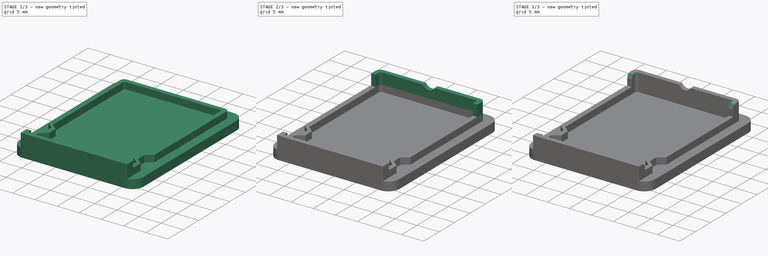
[diagram: build sequence overview — one tinted view per stage of 3, left to right]
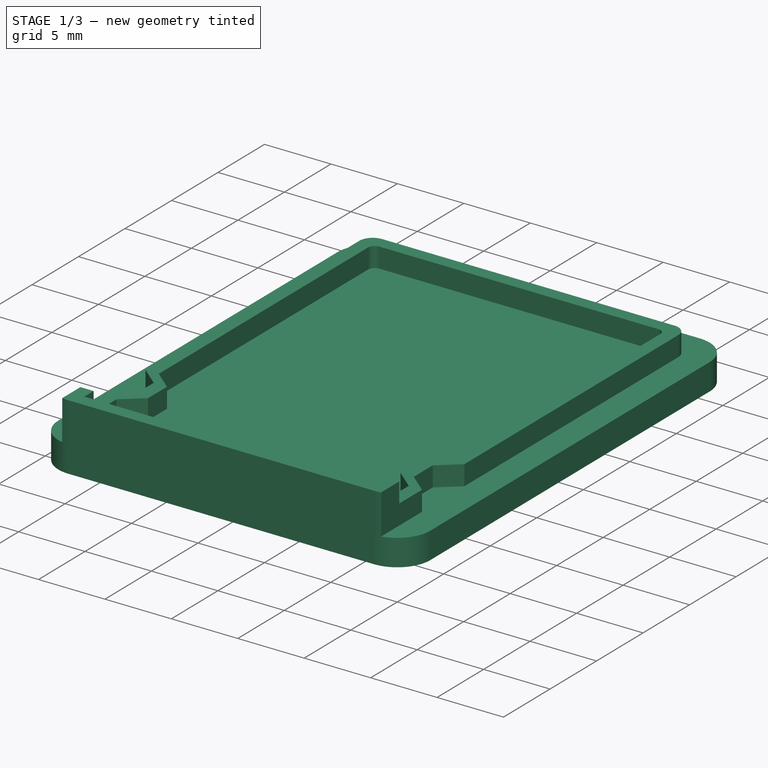
[diagram: stage 1 of 3 — iso view after this stage's code; geometry added in this stage tinted green]
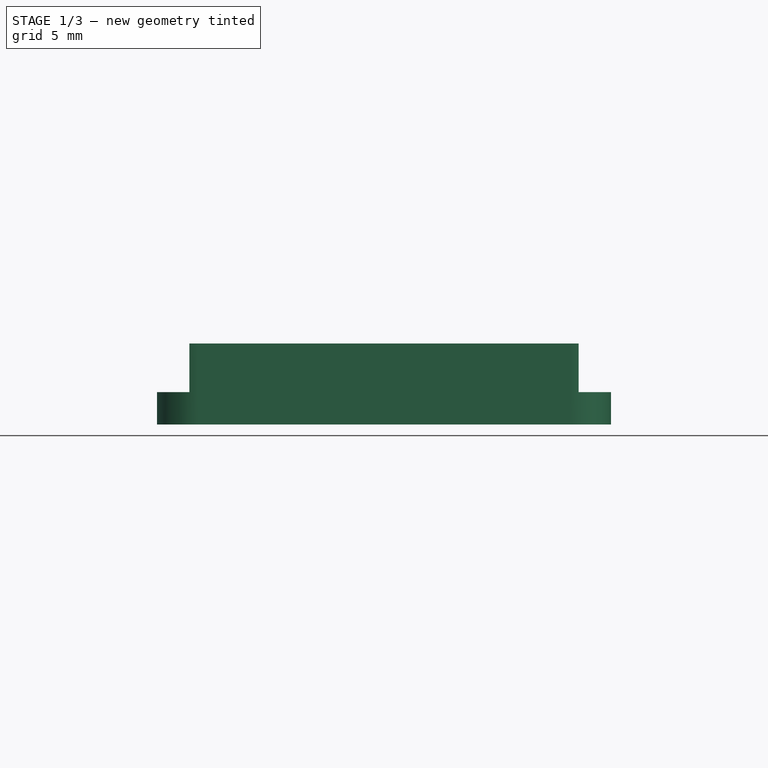
[diagram: stage 1 of 3 — front view after this stage's code; geometry added in this stage tinted green]
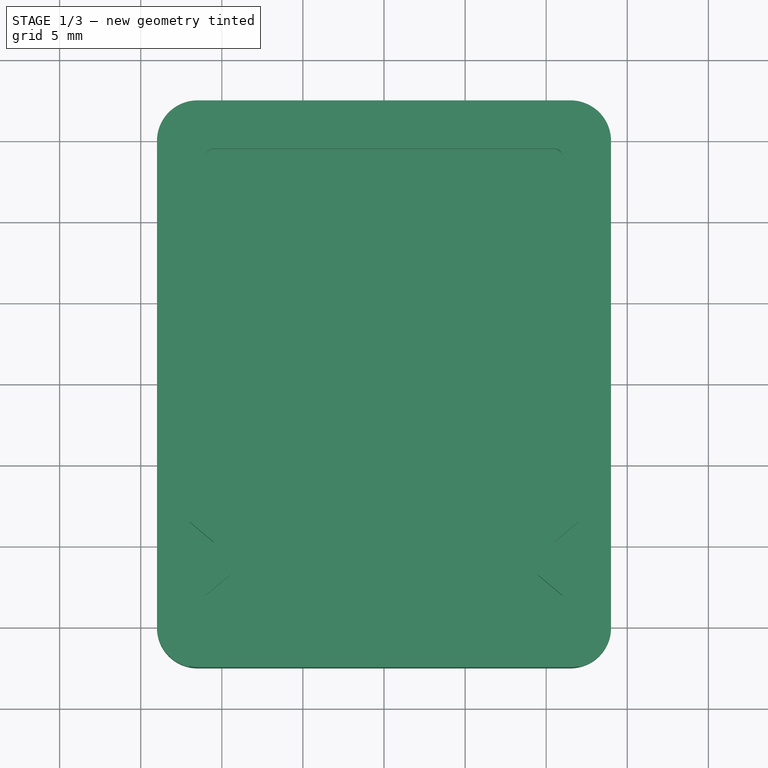
[diagram: stage 1 of 3 — top view after this stage's code; geometry added in this stage tinted green]
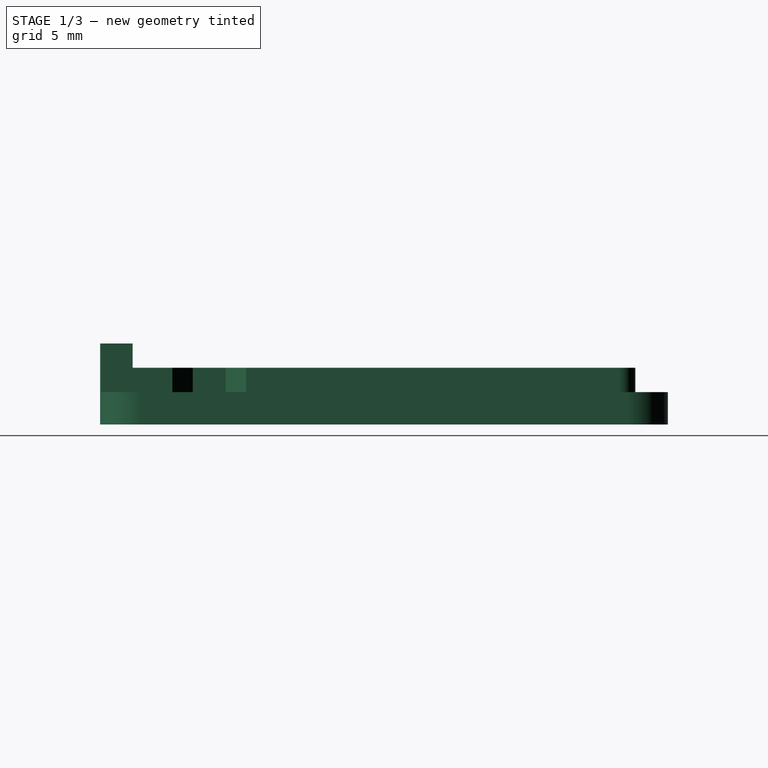
[diagram: stage 1 of 3 — right view after this stage's code; geometry added in this stage tinted green]
FCSTD DOCUMENT  (FreeCAD 0.18.4R)
Label: soil-lid
License: All rights reserved
LicenseURL: http://en.wikipedia.org/wiki/All_rights_reserved
objects: Sketcher::SketchObject×5, PartDesign::Pad×4, PartDesign::Fillet×3, PartDesign::Pocket×1, PartDesign::Body×1
note: 19 computed .brp shape members not serialized (recipe doc carries the construction recipe); baked Part::Feature solids carry a one-line shape summary decoded from their .brp

FEATURE [Sketcher::SketchObject] Sketch
  MapMode = 5
  Support = -> [XY_Plane]
  sketch-geometry (8):
    g0: LineSegment StartX=-11.5 StartY=17.5 StartZ=0 EndX=11.5 EndY=17.5 EndZ=0
    g1: LineSegment StartX=14 StartY=15 StartZ=0 EndX=14 EndY=-15 EndZ=0
    g2: LineSegment StartX=11.5 StartY=-17.5 StartZ=0 EndX=-11.5 EndY=-17.5 EndZ=0
    g3: LineSegment StartX=-14 StartY=-15 StartZ=0 EndX=-14 EndY=15 EndZ=0
    g4: ArcOfCircle CenterX=-11.5 CenterY=15 CenterZ=0 NormalX=0 NormalY=0 NormalZ=1 AngleXU=0 Radius=2.5 StartAngle=1.5708 EndAngle=3.14159
    g5: ArcOfCircle CenterX=11.5 CenterY=15 CenterZ=0 NormalX=0 NormalY=0 NormalZ=1 AngleXU=0 Radius=2.5 StartAngle=-1.519e-13 EndAngle=1.5708
    g6: ArcOfCircle CenterX=-11.5 CenterY=-15 CenterZ=0 NormalX=0 NormalY=0 NormalZ=1 AngleXU=0 Radius=2.5 StartAngle=3.14159 EndAngle=4.71239
    g7: ArcOfCircle CenterX=11.5 CenterY=-15 CenterZ=0 NormalX=0 NormalY=0 NormalZ=1 AngleXU=0 Radius=2.5 StartAngle=4.71239 EndAngle=6.28319
  constraints (19):
    c: Horizontal(g0)
    c: Horizontal(g2)
    c: Vertical(g1)
    c: Vertical(g3)
    c: Tangent(g3,g4) = 1.5708
    c: Tangent(g0,g4) = 1.5708
    c: Tangent(g0,g5) = 1.5708
    c: Tangent(g1,g5) = 1.5708
    c: Tangent(g3,g6) = 1.5708
    c: Tangent(g2,g6) = 1.5708
    c: Tangent(g2,g7) = 1.5708
    c: Tangent(g1,g7) = 1.5708
    c: Equal(g5,g7)
    c: Equal(g7,g6)
    c: Equal(g6,g4)
    c: Symmetric(g5,g6,g-1)
    c: DistanceY(g2,g0) = 35
    c: Radius(g5) = 2.5
    c: DistanceX(g3,g1) = 28
FEATURE [PartDesign::Pad] Pad
  Length = 2
  Length2 = 100
  Profile = -> Sketch
  Type = 0
FEATURE [Sketcher::SketchObject] Sketch001
  ExternalGeometry = -> [Pad]
  MapMode = 5
  Placement = pos=(0,0,2) rot=(0,0,1;0rad)
  Support = -> [Pad]
  sketch-geometry (30):
    g0: LineSegment StartX=-11 StartY=15.5 StartZ=0 EndX=11 EndY=15.5 EndZ=0
    g1: ArcOfCircle CenterX=11 CenterY=14.5 CenterZ=0 NormalX=0 NormalY=0 NormalZ=1 AngleXU=0 Radius=1 StartAngle=0 EndAngle=1.5708
    g2: ArcOfCircle CenterX=-11 CenterY=14.5 CenterZ=0 NormalX=0 NormalY=0 NormalZ=1 AngleXU=0 Radius=1 StartAngle=1.5708 EndAngle=3.14159
    g3: LineSegment StartX=-12 StartY=14.5 StartZ=0 EndX=-12 EndY=-8.5 EndZ=0
    g4: LineSegment StartX=-12 StartY=-8.5 StartZ=0 EndX=-10.5 EndY=-9.76 EndZ=0
    g5: LineSegment StartX=-10.5 StartY=-9.76 StartZ=0 EndX=-10.5 EndY=-11.79 EndZ=0
    g6: LineSegment StartX=-10.5 StartY=-11.79 StartZ=0 EndX=-12 EndY=-13.05 EndZ=0
    g7: LineSegment StartX=-12 StartY=-13.05 StartZ=0 EndX=-12 EndY=-17.4495 EndZ=0
    g8: LineSegment StartX=12 StartY=14.5 StartZ=0 EndX=12 EndY=-8.5 EndZ=0
    g9: LineSegment StartX=12 StartY=-8.5 StartZ=0 EndX=10.5 EndY=-9.76 EndZ=0
    g10: LineSegment StartX=10.5 StartY=-9.76 StartZ=0 EndX=10.5 EndY=-11.79 EndZ=0
    g11: LineSegment StartX=10.5 StartY=-11.79 StartZ=0 EndX=12 EndY=-13.05 EndZ=0
    g12: LineSegment StartX=12 StartY=-13.05 StartZ=0 EndX=12 EndY=-17.4495 EndZ=0
    g13: ArcOfCircle CenterX=-11.5 CenterY=-15 CenterZ=0 NormalX=0 NormalY=0 NormalZ=1 AngleXU=0 Radius=2.5 StartAngle=4.51103 EndAngle=4.71239
    g14: ArcOfCircle CenterX=11.5 CenterY=-15 CenterZ=0 NormalX=0 NormalY=0 NormalZ=1 AngleXU=0 Radius=2.5 StartAngle=4.71239 EndAngle=4.91375
    g15: LineSegment StartX=-11.5 StartY=-17.5 StartZ=0 EndX=11.5 EndY=-17.5 EndZ=0
    g16: LineSegment StartX=-11 StartY=-16.5 StartZ=0 EndX=-11 EndY=-13.05 EndZ=0
    g17: LineSegment StartX=-11 StartY=-13.05 StartZ=0 EndX=-9.5 EndY=-11.79 EndZ=0
    g18: LineSegment StartX=-9.5 StartY=-11.79 StartZ=0 EndX=-9.5 EndY=-9.76 EndZ=0
    g19: LineSegment StartX=-9.5 StartY=-9.76 StartZ=0 EndX=-11 EndY=-8.5 EndZ=0
    g20: LineSegment StartX=-11 StartY=-8.5 StartZ=0 EndX=-11 EndY=14 EndZ=0
    g21: LineSegment StartX=-10.5 StartY=14.5 StartZ=0 EndX=10.5 EndY=14.5 EndZ=0
    g22: LineSegment StartX=11 StartY=14 StartZ=0 EndX=11 EndY=-8.5 EndZ=0
    g23: LineSegment StartX=11 StartY=-8.5 StartZ=0 EndX=9.5 EndY=-9.76 EndZ=0
    g24: LineSegment StartX=9.5 StartY=-9.76 StartZ=0 EndX=9.5 EndY=-11.79 EndZ=0
    g25: LineSegment StartX=9.5 StartY=-11.79 StartZ=0 EndX=11 EndY=-13.05 EndZ=0
    g26: LineSegment StartX=11 StartY=-13.05 StartZ=0 EndX=11 EndY=-16.5 EndZ=0
    g27: LineSegment StartX=11 StartY=-16.5 StartZ=0 EndX=-11 EndY=-16.5 EndZ=0
    g28: ArcOfCircle CenterX=-10.5 CenterY=14 CenterZ=0 NormalX=0 NormalY=0 NormalZ=1 AngleXU=0 Radius=0.5 StartAngle=1.5708 EndAngle=3.14159
    g29: ArcOfCircle CenterX=10.5 CenterY=14 CenterZ=0 NormalX=0 NormalY=0 NormalZ=1 AngleXU=0 Radius=0.5 StartAngle=-4.4e-15 EndAngle=1.5708
  constraints (88):
    c: Horizontal(g0)
    c: Equal(g2,g1)
    c: Coincident(g3,g4)
    c: Coincident(g4,g5)
    c: Coincident(g5,g6)
    c: Coincident(g6,g7)
    c: Vertical(g8)
    c: Coincident(g8,g9)
    c: Coincident(g9,g10)
    c: Vertical(g10)
    c: Coincident(g10,g11)
    c: Coincident(g11,g12)
    c: Vertical(g12)
    c: Vertical(g7)
    c: Vertical(g3)
    c: Vertical(g5)
    c: Equal(g5,g10)
    c: Coincident(g1,g8)
    c: Coincident(g1,g0)
    c: Coincident(g0,g2)
    c: Coincident(g2,g3)
    c: DistanceY(g0,g-3) = 2
    c: DistanceX(g1,g-5) = 2
    c: DistanceX(g-4,g2) = 2
    c: Radius(g2) = 1
    c: Horizontal(g2,g2)
    c: Vertical(g0,g2)
    c: Vertical(g1,g0)
    c: Horizontal(g1,g1)
    c: DistanceY(g6,g3) = 4.55
    c: DistanceY(g5,g5) = 2.03
    c: Horizontal(g10,g5)
    c: DistanceY(g11,g8) = 4.55
    c: DistanceX(g3,g4) = 1.5
    c: DistanceY(g4,g3) = 1.26
    c: Equal(g4,g9)
    c: DistanceX(g-4,g6) = 2
    c: DistanceX(g11,g-5) = 2
    c: Equal(g11,g6)
    c: DistanceY(g8,g8) = 23
    c: Coincident(g13,g-7)
    c: Coincident(g13,g-7)
    c: Coincident(g13,g7)
    c: Coincident(g14,g-8)
    c: Coincident(g14,g-8)
    c: Coincident(g14,g12)
    c: Coincident(g15,g13)
    c: Coincident(g15,g14)
    c: Vertical(g16)
    c: Coincident(g16,g17)
    c: Coincident(g17,g18)
    c: Coincident(g18,g19)
    c: Coincident(g19,g20)
    c: Horizontal(g21)
    c: Vertical(g22)
    c: Coincident(g22,g23)
    c: Coincident(g23,g24)
    c: Vertical(g24)
    c: Coincident(g24,g25)
    c: Coincident(g25,g26)
    c: Vertical(g26)
    c: Coincident(g26,g27)
    c: Coincident(g27,g16)
    c: Horizontal(g27)
    c: Vertical(g18)
    c: Vertical(g20)
    c: Tangent(g20,g28) = 1.5708
    c: Tangent(g21,g28) = 1.5708
    c: Tangent(g21,g29) = 1.5708
    c: Tangent(g22,g29) = 1.5708
    c: Equal(g18,g24)
    c: Horizontal(g24,g17)
    c: Equal(g19,g23)
    c: Equal(g25,g17)
    c: Equal(g20,g22)
    c: Equal(g28,g29)
    c: DistanceY(g21,g0) = 1
    c: DistanceX(g2,g20) = 1
    c: DistanceX(g22,g1) = 1
    c: DistanceX(g19,g16) = 0
    c: DistanceY(g14,g26) = 1
    c: DistanceX(g25,g11) = 1
    c: Horizontal(g23,g9)
    c: Horizontal(g22,g8)
    c: Horizontal(g24,g10)
    c: Horizontal(g25,g11)
    c: DistanceX(g23,g9) = 1
    c: Radius(g28) = 0.5
FEATURE [PartDesign::Pad] Pad001
  BaseFeature = -> Pad
  Length = 1.5
  Length2 = 100
  Profile = -> Sketch001
  Type = 0
FEATURE [Sketcher::SketchObject] Sketch002
  ExternalGeometry = -> [Pad001]
  MapMode = 5
  Placement = pos=(0,0,3.5) rot=(0,0,1;0rad)
  Support = -> [Pad001]
  sketch-geometry (12):
    g0: ArcOfCircle CenterX=11.5 CenterY=-15 CenterZ=0 NormalX=0 NormalY=0 NormalZ=1 AngleXU=0 Radius=2.5 StartAngle=4.71239 EndAngle=4.91375
    g1: ArcOfCircle CenterX=-11.5 CenterY=-15 CenterZ=0 NormalX=0 NormalY=0 NormalZ=1 AngleXU=0 Radius=2.5 StartAngle=4.51103 EndAngle=4.71239
    g2: LineSegment StartX=-12 StartY=-16.5 StartZ=0 EndX=-12 EndY=-17.4495 EndZ=0
    g3: LineSegment StartX=-11.5 StartY=-17.5 StartZ=0 EndX=11.5 EndY=-17.5 EndZ=0
    g4: LineSegment StartX=12 StartY=-16.5 StartZ=0 EndX=12 EndY=-17.4495 EndZ=0
    g5: LineSegment StartX=11 StartY=-16.5 StartZ=0 EndX=-11 EndY=-16.5 EndZ=0
    g6: LineSegment StartX=-12 StartY=-16.5 StartZ=0 EndX=-12 EndY=-15.5 EndZ=0
    g7: LineSegment StartX=-12 StartY=-15.5 StartZ=0 EndX=-11 EndY=-15.5 EndZ=0
    g8: LineSegment StartX=-11 StartY=-15.5 StartZ=0 EndX=-11 EndY=-16.5 EndZ=0
    g9: LineSegment StartX=11 StartY=-16.5 StartZ=0 EndX=11 EndY=-15.5 EndZ=0
    g10: LineSegment StartX=11 StartY=-15.5 StartZ=0 EndX=12 EndY=-15.5 EndZ=0
    g11: LineSegment StartX=12 StartY=-15.5 StartZ=0 EndX=12 EndY=-16.5 EndZ=0
  constraints (32):
    c: Coincident(g0,g-4)
    c: Coincident(g0,g-3)
    c: Coincident(g1,g-5)
    c: Coincident(g1,g-3)
    c: Horizontal(g2,g-6)
    c: Vertical(g2,g-5)
    c: Vertical(g4,g-4)
    c: Coincident(g2,g-5)
    c: PointOnObject(g1,g2)
    c: Coincident(g3,g1)
    c: Coincident(g3,g0)
    c: Coincident(g4,g-4)
    c: PointOnObject(g0,g4)
    c: Coincident(g5,g-6)
    c: Coincident(g5,g-6)
    c: Coincident(g2,g6)
    c: Coincident(g6,g7)
    c: Coincident(g7,g8)
    c: Coincident(g8,g5)
    c: Vertical(g8)
    c: Coincident(g5,g9)
    c: Vertical(g9)
    c: Coincident(g9,g10)
    c: Horizontal(g10)
    c: Coincident(g10,g11)
    c: Coincident(g11,g4)
    c: Vertical(g11)
    c: Horizontal(g7)
    c: Vertical(g6)
    c: Equal(g8,g9)
    c: DistanceY(g9,g9) = 1
    c: Horizontal(g4,g5)
FEATURE [PartDesign::Pad] Pad002
  BaseFeature = -> Pad001
  Length = 1.5
  Length2 = 100
  Profile = -> Sketch002
  Type = 0
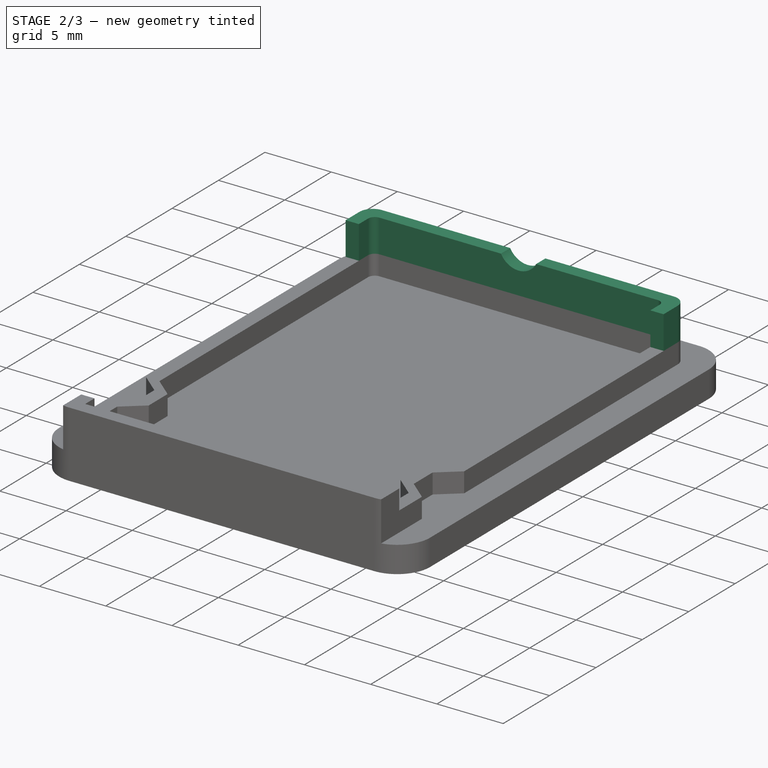
[diagram: stage 2 of 3 — iso view after this stage's code; geometry added in this stage tinted green]
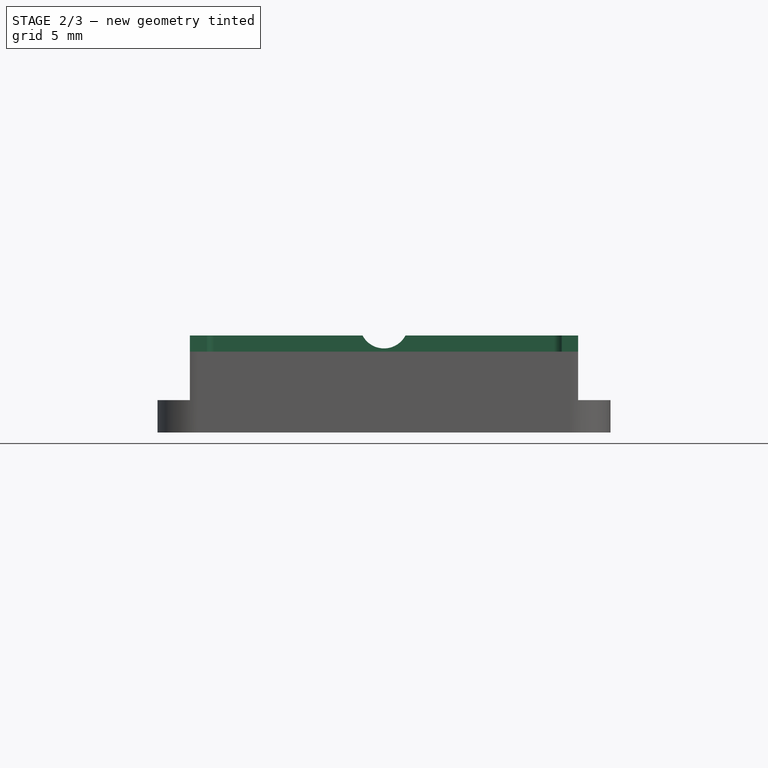
[diagram: stage 2 of 3 — front view after this stage's code; geometry added in this stage tinted green]
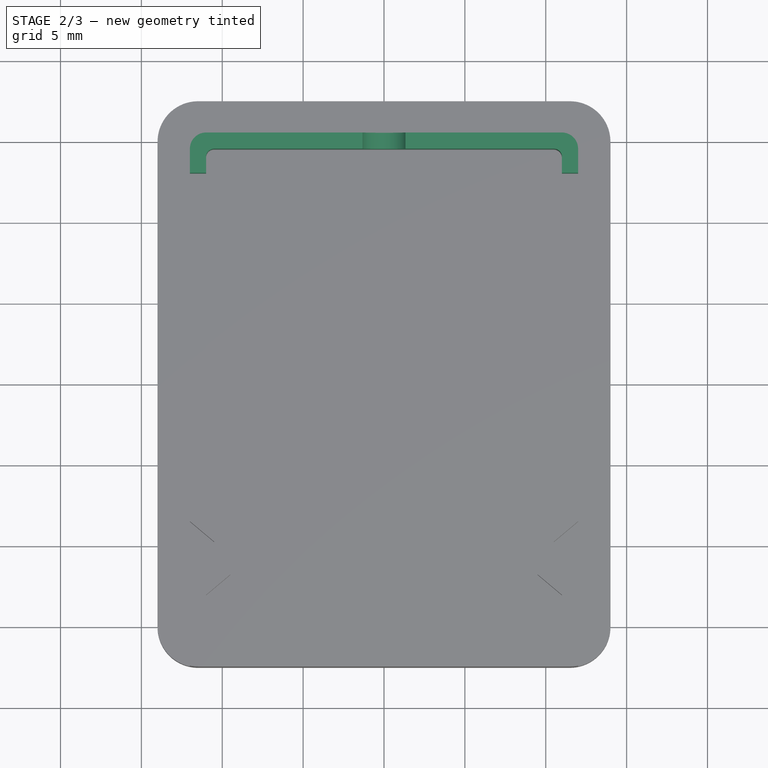
[diagram: stage 2 of 3 — top view after this stage's code; geometry added in this stage tinted green]
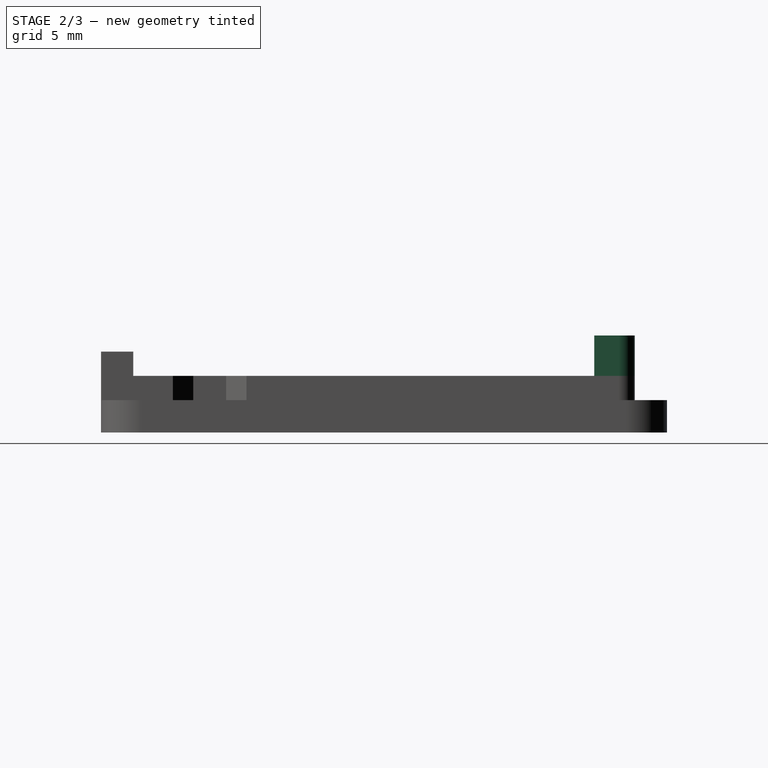
[diagram: stage 2 of 3 — right view after this stage's code; geometry added in this stage tinted green]
FEATURE [Sketcher::SketchObject] Sketch003
  ExternalGeometry = -> [Pad002]
  MapMode = 5
  Placement = pos=(0,0,3.5) rot=(0,0,1;0rad)
  Support = -> [Pad002]
  sketch-geometry (12):
    g0: LineSegment StartX=-11 StartY=15.5 StartZ=0 EndX=11 EndY=15.5 EndZ=0
    g1: LineSegment StartX=-11 StartY=14 StartZ=0 EndX=-11 EndY=13 EndZ=0
    g2: LineSegment StartX=-12 StartY=14.5 StartZ=0 EndX=-12 EndY=13 EndZ=0
    g3: LineSegment StartX=11 StartY=14 StartZ=0 EndX=11 EndY=13 EndZ=0
    g4: LineSegment StartX=12 StartY=14.5 StartZ=0 EndX=12 EndY=13 EndZ=0
    g5: LineSegment StartX=11 StartY=13 StartZ=0 EndX=12 EndY=13 EndZ=0
    g6: LineSegment StartX=-12 StartY=13 StartZ=0 EndX=-11 EndY=13 EndZ=0
    g7: ArcOfCircle CenterX=-11 CenterY=14.5 CenterZ=0 NormalX=0 NormalY=0 NormalZ=1 AngleXU=0 Radius=1 StartAngle=1.57078 EndAngle=3.14159
    g8: ArcOfCircle CenterX=11 CenterY=14.5 CenterZ=0 NormalX=0 NormalY=0 NormalZ=1 AngleXU=0 Radius=1 StartAngle=0 EndAngle=1.57079
    g9: ArcOfCircle CenterX=10.5 CenterY=14 CenterZ=0 NormalX=0 NormalY=0 NormalZ=1 AngleXU=0 Radius=0.5 StartAngle=-2.7e-15 EndAngle=1.5708
    g10: ArcOfCircle CenterX=-10.5 CenterY=14 CenterZ=0 NormalX=0 NormalY=0 NormalZ=1 AngleXU=0 Radius=0.5 StartAngle=1.5708 EndAngle=3.14159
    g11: LineSegment StartX=-10.5 StartY=14.5 StartZ=0 EndX=10.5 EndY=14.5 EndZ=0
  constraints (32):
    c: Coincident(g1,g-6)
    c: Coincident(g2,g-5)
    c: Vertical(g2)
    c: Coincident(g3,g-7)
    c: Vertical(g3)
    c: Coincident(g4,g-8)
    c: Vertical(g4)
    c: Coincident(g5,g3)
    c: Coincident(g5,g4)
    c: Coincident(g6,g2)
    c: Coincident(g6,g1)
    c: Horizontal(g6)
    c: Vertical(g1)
    c: Horizontal(g5)
    c: Horizontal(g3,g1)
    c: Coincident(g7,g-5)
    c: Coincident(g7,g2)
    c: Coincident(g7,g0)
    c: Coincident(g8,g-8)
    c: Coincident(g8,g0)
    c: Coincident(g8,g4)
    c: Coincident(g9,g-7)
    c: Coincident(g9,g3)
    c: Coincident(g10,g-6)
    c: Coincident(g10,g-6)
    c: Coincident(g10,g1)
    c: Coincident(g11,g10)
    c: Coincident(g11,g9)
    c: Horizontal(g11)
    c: DistanceY(g1,g1) = 1
    c: Horizontal(g0,g-5)
    c: Horizontal(g0,g-8)
FEATURE [PartDesign::Pad] Pad003
  BaseFeature = -> Pad002
  Length = 2.5
  Length2 = 100
  Profile = -> Sketch003
  Type = 0
FEATURE [Sketcher::SketchObject] Sketch004
  ExternalGeometry = -> [Pad003]
  MapMode = 5
  Placement = pos=(-3.99599e-11,15.5,0) rot=(0,0.707107,0.707107;3.14159rad)
  Support = -> [Pad003]
  sketch-geometry (1):
    g0: Circle CenterX=0 CenterY=6.7 CenterZ=0 NormalX=0 NormalY=0 NormalZ=1 AngleXU=0 Radius=1.5
  constraints (3):
    c: PointOnObject(g0,g-2)
    c: Radius(g0) = 1.5
    c: DistanceY(g-3,g0) = 0.7
FEATURE [PartDesign::Pocket] Pocket
  BaseFeature = -> Pad003
  Length = 5
  Length2 = 100
  Profile = -> Sketch004
  Type = 0
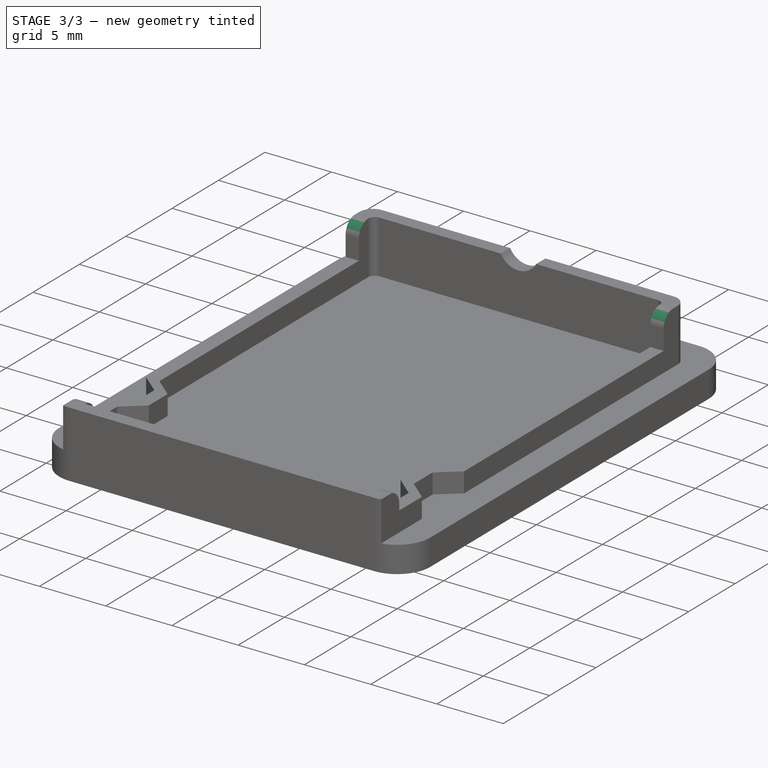
[diagram: stage 3 of 3 — iso view after this stage's code; geometry added in this stage tinted green]
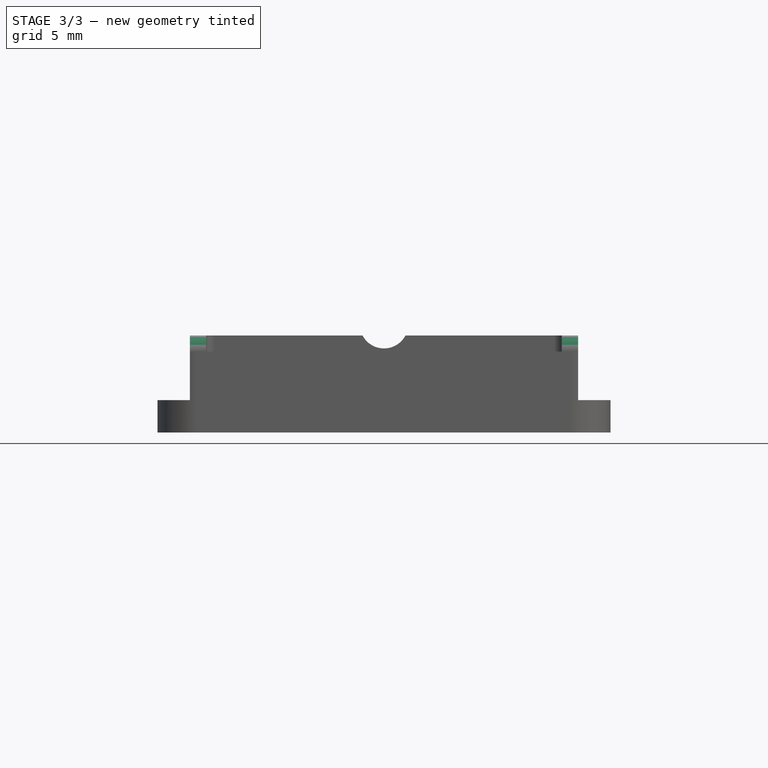
[diagram: stage 3 of 3 — front view after this stage's code; geometry added in this stage tinted green]
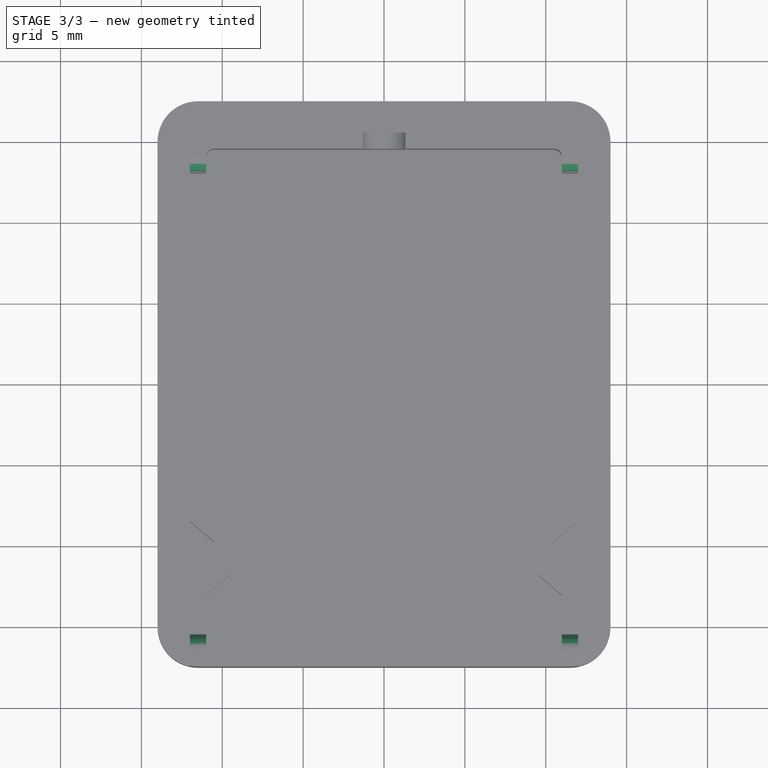
[diagram: stage 3 of 3 — top view after this stage's code; geometry added in this stage tinted green]
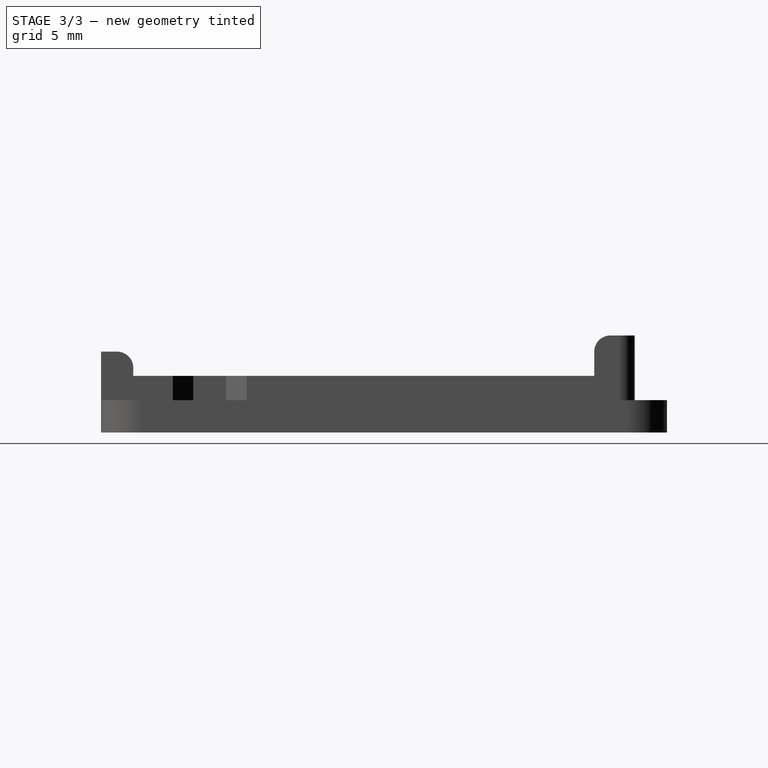
[diagram: stage 3 of 3 — right view after this stage's code; geometry added in this stage tinted green]
FEATURE [PartDesign::Fillet] Fillet
  Base = -> Pocket [Edge122]
  BaseFeature = -> Pocket
  Radius = 1
FEATURE [PartDesign::Fillet] Fillet001
  Base = -> Fillet [Edge32]
  BaseFeature = -> Fillet
  Radius = 1
FEATURE [PartDesign::Fillet] Fillet002
  Base = -> Fillet001 [Edge128,Edge161]
  BaseFeature = -> Fillet001
  Radius = 1
FEATURE [PartDesign::Body] Body
  Group = -> [Sketch,Pad,Sketch001,Pad001,Sketch002,Pad002,Sketch003,Pad003,Sketch004,Pocket,Fillet,Fillet001,Fillet002]
  Origin = -> Origin
  Tip = -> Fillet002
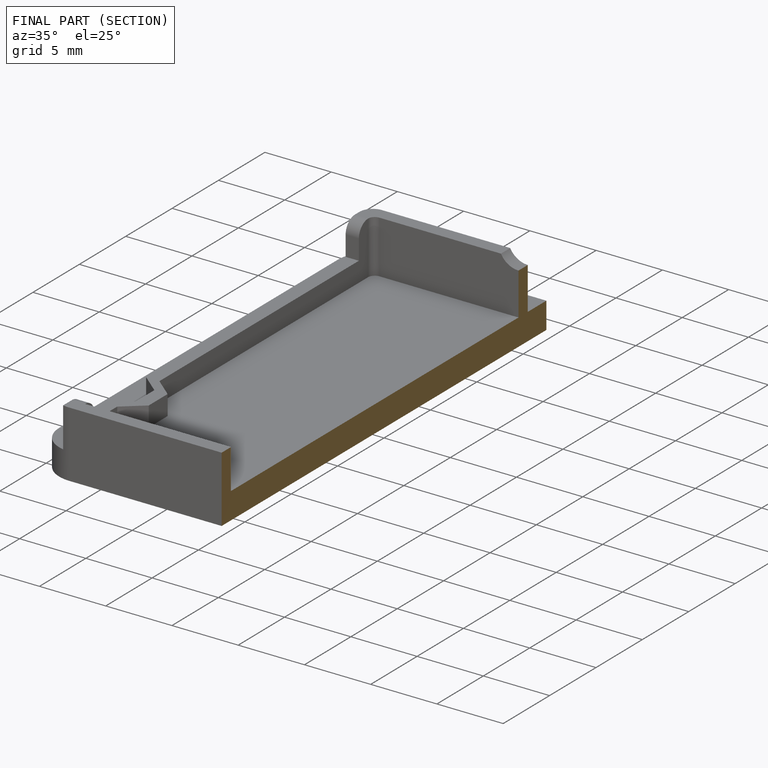
[diagram: finished part — half-section view (interior)]
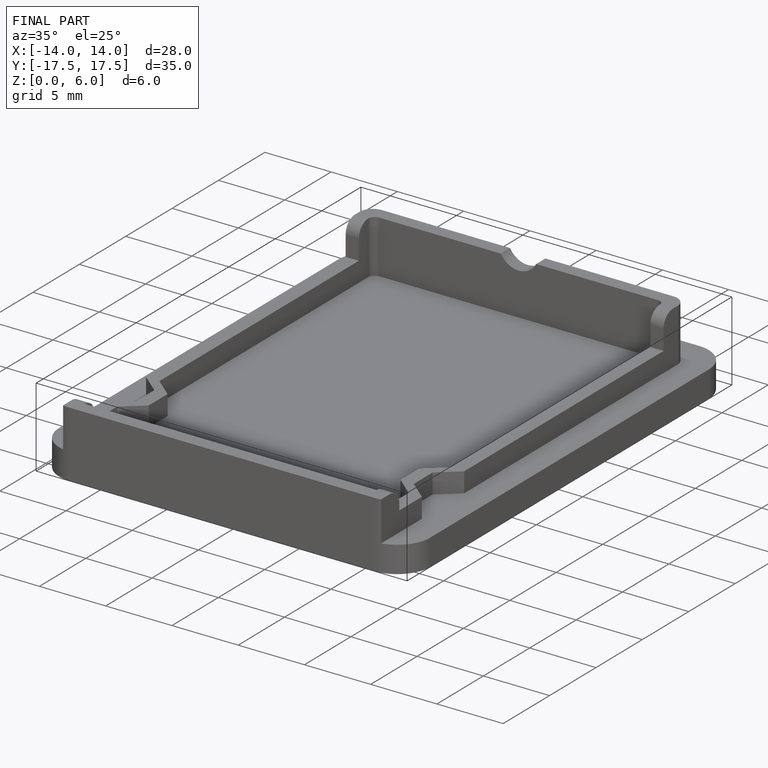
[diagram: finished part — iso view with bounding-box wireframe]
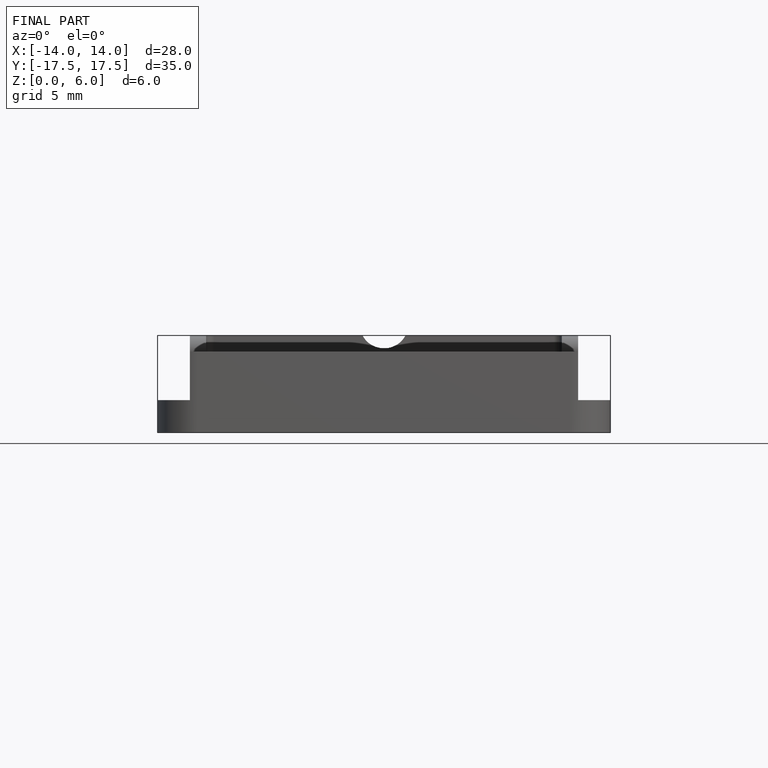
[diagram: finished part — front view with bounding-box wireframe]
